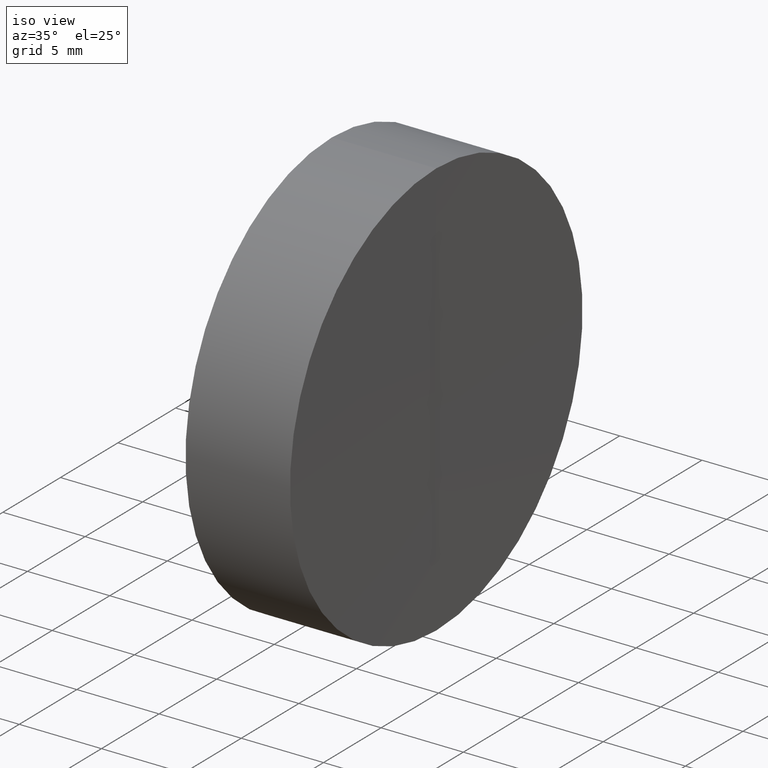
[diagram: clean part render]
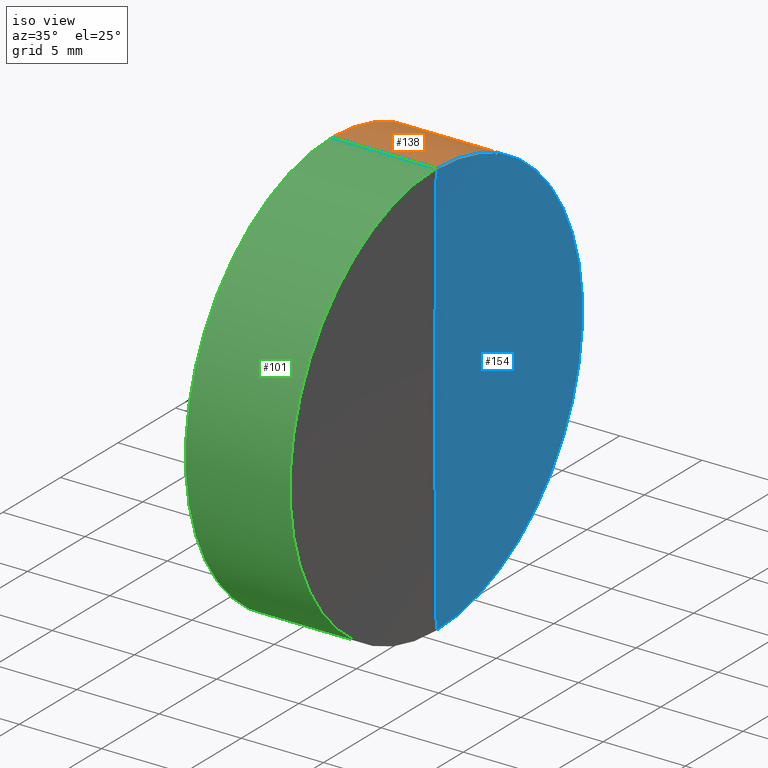
[diagram: same view with three faces highlighted in distinct colors, each labeled with its STEP entity id]
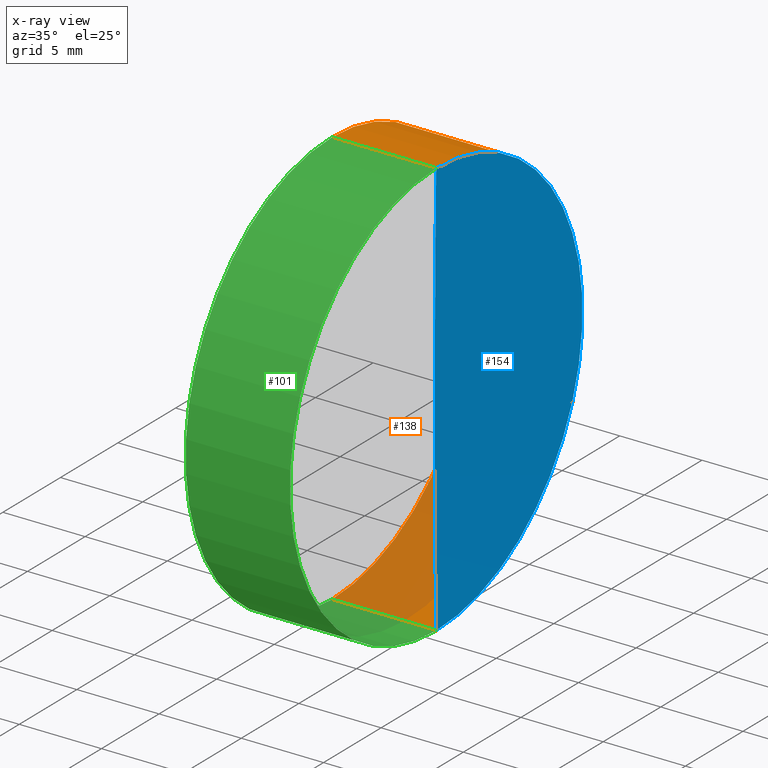
[diagram: x-ray of the same camera — body ghosted, the three highlighted faces saturated]
A machine part, iso view with three faces highlighted in distinct colors.
The next image is the same camera in x-ray (body ghosted, the three faces saturated) — at least one of them is partly hidden behind the body in this view.
Their STEP definitions:

[orange] entity #138 — the highlighted cylindrical surface (partial cylindrical patch) has radius 12.7 mm, axis along (-1, -0, -0).
#2 = DIRECTION ( 'NONE',  ( -1.000000000000000000, -0.0000000000000000000, -0.0000000000000000000 ) ) ;
#16 = VERTEX_POINT ( 'NONE', #60 ) ;
#20 = CARTESIAN_POINT ( 'NONE',  ( 6.350648252070323400, 1.555301434917393800E-015, -12.70000000000208500 ) ) ;
#34 = ORIENTED_EDGE ( 'NONE', *, *, #149, .F. ) ;
#35 = CIRCLE ( 'NONE', #55, 12.69999999999999900 ) ;
#39 = LINE ( 'NONE', #82, #166 ) ;
#41 = EDGE_CURVE ( 'NONE', #16, #78, #35, .T. ) ;
#43 = CIRCLE ( 'NONE', #73, 12.70000000000056200 ) ;
#45 = CARTESIAN_POINT ( 'NONE',  ( 6.350648252070323400, 0.0000000000000000000, 12.70000000000208500 ) ) ;
#49 = CARTESIAN_POINT ( 'NONE',  ( 6.350648252070323400, 0.0000000000000000000, 0.0000000000000000000 ) ) ;
#55 = AXIS2_PLACEMENT_3D ( 'NONE', #89, #165, #79 ) ;
#60 = CARTESIAN_POINT ( 'NONE',  ( 0.0000000000000000000, 0.0000000000000000000, 12.69999999999999900 ) ) ;
#62 = ORIENTED_EDGE ( 'NONE', *, *, #41, .F. ) ;
#69 = DIRECTION ( 'NONE',  ( -1.000000000000000000, -0.0000000000000000000, -0.0000000000000000000 ) ) ;
#70 = DIRECTION ( 'NONE',  ( 0.0000000000000000000, 0.0000000000000000000, 1.000000000000000000 ) ) ;
#72 = DIRECTION ( 'NONE',  ( 0.0000000000000000000, 0.0000000000000000000, 1.000000000000000000 ) ) ;
#73 = AXIS2_PLACEMENT_3D ( 'NONE', #49, #81, #70 ) ;
#74 = FACE_OUTER_BOUND ( 'NONE', #133, .T. ) ;
#77 = VECTOR ( 'NONE', #105, 1000.000000000000000 ) ;
#78 = VERTEX_POINT ( 'NONE', #137 ) ;
#79 = DIRECTION ( 'NONE',  ( 0.0000000000000000000, 0.0000000000000000000, 1.000000000000000000 ) ) ;
#81 = DIRECTION ( 'NONE',  ( -1.000000000000000000, -0.0000000000000000000, -0.0000000000000000000 ) ) ;
#82 = CARTESIAN_POINT ( 'NONE',  ( 0.0000000000000000000, 1.555301434917172900E-015, -12.70000000000028000 ) ) ;
#83 = ORIENTED_EDGE ( 'NONE', *, *, #121, .T. ) ;
#87 = VERTEX_POINT ( 'NONE', #45 ) ;
#89 = CARTESIAN_POINT ( 'NONE',  ( 0.0000000000000000000, 0.0000000000000000000, 0.0000000000000000000 ) ) ;
#98 = LINE ( 'NONE', #112, #77 ) ;
#99 = AXIS2_PLACEMENT_3D ( 'NONE', #103, #2, #72 ) ;
#103 = CARTESIAN_POINT ( 'NONE',  ( 0.0000000000000000000, 0.0000000000000000000, 0.0000000000000000000 ) ) ;
#105 = DIRECTION ( 'NONE',  ( -1.000000000000000000, -0.0000000000000000000, -0.0000000000000000000 ) ) ;
#106 = CYLINDRICAL_SURFACE ( 'NONE', #99, 12.70000000000028000 ) ;
#107 = ORIENTED_EDGE ( 'NONE', *, *, #141, .T. ) ;
#112 = CARTESIAN_POINT ( 'NONE',  ( 0.0000000000000000000, 0.0000000000000000000, 12.70000000000028000 ) ) ;
#121 = EDGE_CURVE ( 'NONE', #164, #78, #39, .T. ) ;
#133 = EDGE_LOOP ( 'NONE', ( #107, #83, #62, #34 ) ) ;
#137 = CARTESIAN_POINT ( 'NONE',  ( 0.0000000000000000000, 1.555301434917155600E-015, -12.69999999999999900 ) ) ;
#138 = ADVANCED_FACE ( 'NONE', ( #74 ), #106, .T. ) ;
#141 = EDGE_CURVE ( 'NONE', #87, #164, #43, .T. ) ;
#149 = EDGE_CURVE ( 'NONE', #87, #16, #98, .T. ) ;
#164 = VERTEX_POINT ( 'NONE', #20 ) ;
#165 = DIRECTION ( 'NONE',  ( -1.000000000000000000, -0.0000000000000000000, -0.0000000000000000000 ) ) ;
#166 = VECTOR ( 'NONE', #69, 1000.000000000000000 ) ;

[blue] entity #154 — the highlighted spherical surface has radius 1000 mm.
#4 = CARTESIAN_POINT ( 'NONE',  ( 1006.270000000000000, 0.0000000000000000000, 0.0000000000000000000 ) ) ;
#6 = AXIS2_PLACEMENT_3D ( 'NONE', #4, #93, #102 ) ;
#11 = SPHERICAL_SURFACE ( 'NONE', #6, 1000.000000000000000 ) ;
#18 = AXIS2_PLACEMENT_3D ( 'NONE', #123, #42, #110 ) ;
#20 = CARTESIAN_POINT ( 'NONE',  ( 6.350648252070323400, 1.555301434917393800E-015, -12.70000000000208500 ) ) ;
#21 = ORIENTED_EDGE ( 'NONE', *, *, #141, .F. ) ;
#25 = EDGE_CURVE ( 'NONE', #164, #65, #90, .T. ) ;
#30 = CARTESIAN_POINT ( 'NONE',  ( 6.269999999999997800, 0.0000000000000000000, 6.123233995736766200E-014 ) ) ;
#33 = DIRECTION ( 'NONE',  ( 0.0000000000000000000, 0.0000000000000000000, -1.000000000000000000 ) ) ;
#42 = DIRECTION ( 'NONE',  ( -0.0000000000000000000, 1.000000000000000000, 1.224646799147353200E-016 ) ) ;
#43 = CIRCLE ( 'NONE', #73, 12.70000000000056200 ) ;
#45 = CARTESIAN_POINT ( 'NONE',  ( 6.350648252070323400, 0.0000000000000000000, 12.70000000000208500 ) ) ;
#49 = CARTESIAN_POINT ( 'NONE',  ( 6.350648252070323400, 0.0000000000000000000, 0.0000000000000000000 ) ) ;
#54 = EDGE_CURVE ( 'NONE', #87, #65, #159, .T. ) ;
#59 = DIRECTION ( 'NONE',  ( 0.0000000000000000000, -1.000000000000000000, 0.0000000000000000000 ) ) ;
#63 = AXIS2_PLACEMENT_3D ( 'NONE', #124, #59, #33 ) ;
#65 = VERTEX_POINT ( 'NONE', #30 ) ;
#70 = DIRECTION ( 'NONE',  ( 0.0000000000000000000, 0.0000000000000000000, 1.000000000000000000 ) ) ;
#73 = AXIS2_PLACEMENT_3D ( 'NONE', #49, #81, #70 ) ;
#81 = DIRECTION ( 'NONE',  ( -1.000000000000000000, -0.0000000000000000000, -0.0000000000000000000 ) ) ;
#87 = VERTEX_POINT ( 'NONE', #45 ) ;
#90 = CIRCLE ( 'NONE', #18, 1000.000000000000000 ) ;
#93 = DIRECTION ( 'NONE',  ( 0.0000000000000000000, 1.000000000000000000, 0.0000000000000000000 ) ) ;
#102 = DIRECTION ( 'NONE',  ( 0.0000000000000000000, 0.0000000000000000000, 1.000000000000000000 ) ) ;
#108 = EDGE_LOOP ( 'NONE', ( #156, #21, #148 ) ) ;
#110 = DIRECTION ( 'NONE',  ( 0.0000000000000000000, -1.224646799147353200E-016, 1.000000000000000000 ) ) ;
#123 = CARTESIAN_POINT ( 'NONE',  ( 1006.270000000000000, 0.0000000000000000000, 0.0000000000000000000 ) ) ;
#124 = CARTESIAN_POINT ( 'NONE',  ( 1006.270000000000000, 0.0000000000000000000, 0.0000000000000000000 ) ) ;
#132 = FACE_OUTER_BOUND ( 'NONE', #108, .T. ) ;
#141 = EDGE_CURVE ( 'NONE', #87, #164, #43, .T. ) ;
#148 = ORIENTED_EDGE ( 'NONE', *, *, #54, .T. ) ;
#154 = ADVANCED_FACE ( 'NONE', ( #132 ), #11, .F. ) ;
#156 = ORIENTED_EDGE ( 'NONE', *, *, #25, .F. ) ;
#159 = CIRCLE ( 'NONE', #63, 1000.000000000000000 ) ;
#164 = VERTEX_POINT ( 'NONE', #20 ) ;

[green] entity #101 — the highlighted cylindrical surface (partial cylindrical patch) has radius 12.7 mm, axis along (-1, -0, -0).
#5 = AXIS2_PLACEMENT_3D ( 'NONE', #32, #71, #152 ) ;
#7 = CYLINDRICAL_SURFACE ( 'NONE', #122, 12.70000000000028000 ) ;
#15 = EDGE_CURVE ( 'NONE', #78, #16, #120, .T. ) ;
#16 = VERTEX_POINT ( 'NONE', #60 ) ;
#20 = CARTESIAN_POINT ( 'NONE',  ( 6.350648252070323400, 1.555301434917393800E-015, -12.70000000000208500 ) ) ;
#29 = ORIENTED_EDGE ( 'NONE', *, *, #161, .T. ) ;
#32 = CARTESIAN_POINT ( 'NONE',  ( 0.0000000000000000000, 0.0000000000000000000, 0.0000000000000000000 ) ) ;
#38 = DIRECTION ( 'NONE',  ( 0.0000000000000000000, 0.0000000000000000000, 1.000000000000000000 ) ) ;
#39 = LINE ( 'NONE', #82, #166 ) ;
#45 = CARTESIAN_POINT ( 'NONE',  ( 6.350648252070323400, 0.0000000000000000000, 12.70000000000208500 ) ) ;
#52 = CARTESIAN_POINT ( 'NONE',  ( 6.350648252070323400, 0.0000000000000000000, 0.0000000000000000000 ) ) ;
#60 = CARTESIAN_POINT ( 'NONE',  ( 0.0000000000000000000, 0.0000000000000000000, 12.69999999999999900 ) ) ;
#61 = DIRECTION ( 'NONE',  ( -1.000000000000000000, -0.0000000000000000000, -0.0000000000000000000 ) ) ;
#68 = FACE_OUTER_BOUND ( 'NONE', #143, .T. ) ;
#69 = DIRECTION ( 'NONE',  ( -1.000000000000000000, -0.0000000000000000000, -0.0000000000000000000 ) ) ;
#71 = DIRECTION ( 'NONE',  ( -1.000000000000000000, -0.0000000000000000000, -0.0000000000000000000 ) ) ;
#77 = VECTOR ( 'NONE', #105, 1000.000000000000000 ) ;
#78 = VERTEX_POINT ( 'NONE', #137 ) ;
#82 = CARTESIAN_POINT ( 'NONE',  ( 0.0000000000000000000, 1.555301434917172900E-015, -12.70000000000028000 ) ) ;
#87 = VERTEX_POINT ( 'NONE', #45 ) ;
#88 = ORIENTED_EDGE ( 'NONE', *, *, #15, .F. ) ;
#94 = AXIS2_PLACEMENT_3D ( 'NONE', #52, #115, #38 ) ;
#97 = ORIENTED_EDGE ( 'NONE', *, *, #121, .F. ) ;
#98 = LINE ( 'NONE', #112, #77 ) ;
#101 = ADVANCED_FACE ( 'NONE', ( #68 ), #7, .T. ) ;
#105 = DIRECTION ( 'NONE',  ( -1.000000000000000000, -0.0000000000000000000, -0.0000000000000000000 ) ) ;
#111 = CARTESIAN_POINT ( 'NONE',  ( 0.0000000000000000000, 0.0000000000000000000, 0.0000000000000000000 ) ) ;
#112 = CARTESIAN_POINT ( 'NONE',  ( 0.0000000000000000000, 0.0000000000000000000, 12.70000000000028000 ) ) ;
#113 = CIRCLE ( 'NONE', #94, 12.70000000000056200 ) ;
#115 = DIRECTION ( 'NONE',  ( -1.000000000000000000, -0.0000000000000000000, -0.0000000000000000000 ) ) ;
#120 = CIRCLE ( 'NONE', #5, 12.69999999999999900 ) ;
#121 = EDGE_CURVE ( 'NONE', #164, #78, #39, .T. ) ;
#122 = AXIS2_PLACEMENT_3D ( 'NONE', #111, #61, #155 ) ;
#136 = ORIENTED_EDGE ( 'NONE', *, *, #149, .T. ) ;
#137 = CARTESIAN_POINT ( 'NONE',  ( 0.0000000000000000000, 1.555301434917155600E-015, -12.69999999999999900 ) ) ;
#143 = EDGE_LOOP ( 'NONE', ( #97, #29, #136, #88 ) ) ;
#149 = EDGE_CURVE ( 'NONE', #87, #16, #98, .T. ) ;
#152 = DIRECTION ( 'NONE',  ( 0.0000000000000000000, 0.0000000000000000000, 1.000000000000000000 ) ) ;
#155 = DIRECTION ( 'NONE',  ( 0.0000000000000000000, 0.0000000000000000000, 1.000000000000000000 ) ) ;
#161 = EDGE_CURVE ( 'NONE', #164, #87, #113, .T. ) ;
#164 = VERTEX_POINT ( 'NONE', #20 ) ;
#166 = VECTOR ( 'NONE', #69, 1000.000000000000000 ) ;